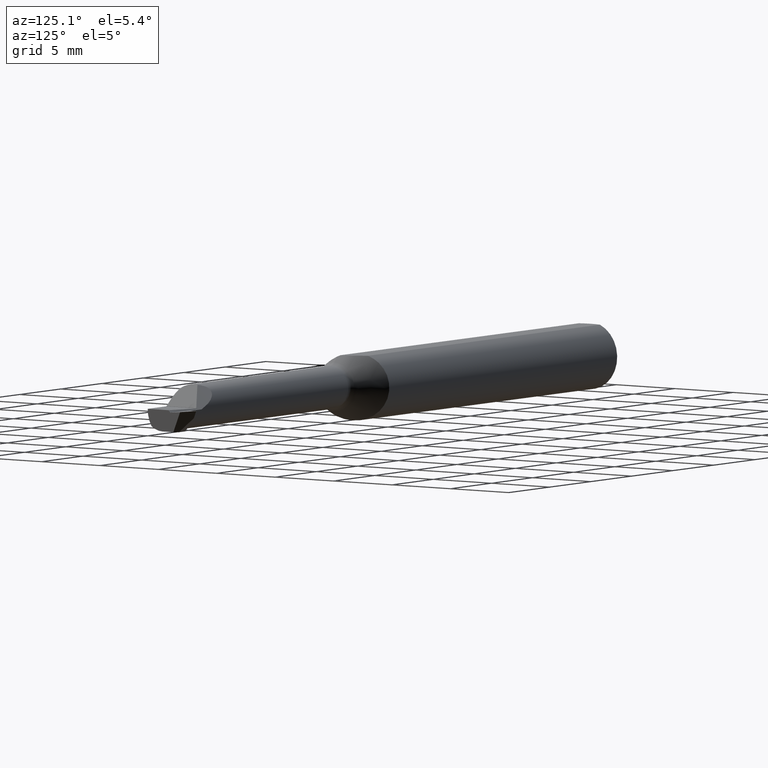
[diagram: clean part render]
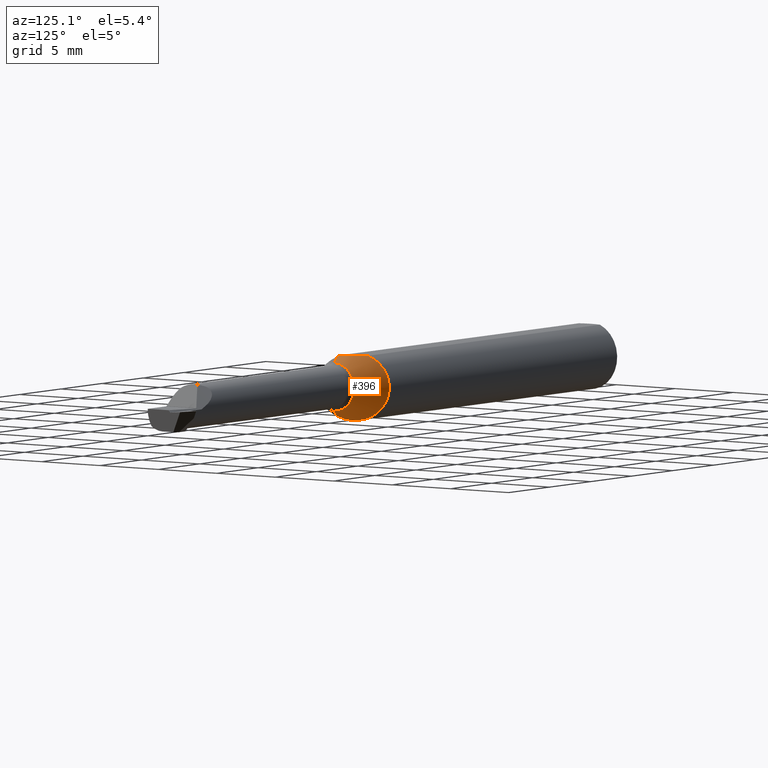
[diagram: same view with one face highlighted and labeled with its STEP entity id]
A machine part, auxiliary view. The second image highlights one B-rep face of the part: STEP entity #396.
In plain terms, the highlighted conical surface has half-angle 45 deg.
Its self-contained STEP definition (entity closure, byte-faithful):
#4 = CARTESIAN_POINT ( 'NONE',  ( 1.177677669529663573, -0.04360000000000000681, 0.000000000000000000 ) ) ;
#19 = CARTESIAN_POINT ( 'NONE',  ( 1.177677669529663573, -0.04359999999999999987, -0.06732233047033618634 ) ) ;
#27 = CARTESIAN_POINT ( 'NONE',  ( 1.141750224432351413, 0.01358083083026446515, 0.08660000000000001030 ) ) ;
#49 = DIRECTION ( 'NONE',  ( -0.7071067811865512365, 8.659560562354887252E-17, -0.7071067811865437980 ) ) ;
#50 = CARTESIAN_POINT ( 'NONE',  ( 1.159416727823433524, -0.03836044660242830806, -0.08558327217656613861 ) ) ;
#52 = VERTEX_POINT ( 'NONE', #931 ) ;
#57 = CARTESIAN_POINT ( 'NONE',  ( 1.115939244946420716, 0.06872653992798649636, -0.06386219844968339665 ) ) ;
#92 = EDGE_CURVE ( 'NONE', #424, #905, #449, .T. ) ;
#95 = DIRECTION ( 'NONE',  ( 0.000000000000000000, 0.000000000000000000, 1.000000000000000000 ) ) ;
#100 = FACE_OUTER_BOUND ( 'NONE', #112, .T. ) ;
#112 = EDGE_LOOP ( 'NONE', ( #1063, #482, #862, #723, #234, #785 ) ) ;
#125 = CARTESIAN_POINT ( 'NONE',  ( 1.110152022803403415, 0.08625128397210295172, -0.03693757504936098085 ) ) ;
#132 = CARTESIAN_POINT ( 'NONE',  ( 1.128890268427389598, 0.03227618288569647498, -0.08807239227670381199 ) ) ;
#139 = CARTESIAN_POINT ( 'NONE',  ( 1.113252824815950559, 0.07676139857450872683, -0.05393890405065051435 ) ) ;
#173 = CARTESIAN_POINT ( 'NONE',  ( 1.160796085082294704, -0.04098075454507676268, 0.08420391491770511105 ) ) ;
#215 = CARTESIAN_POINT ( 'NONE',  ( 1.112096236419457762, 0.08028148374112677177, -0.04856492361454633339 ) ) ;
#223 = CARTESIAN_POINT ( 'NONE',  ( 1.123563078640440471, 0.04680750307691888129, 0.08129727678532765178 ) ) ;
#229 = CARTESIAN_POINT ( 'NONE',  ( 1.135742326738735430, 0.01455546558514132609, -0.09266009913134311271 ) ) ;
#234 = ORIENTED_EDGE ( 'NONE', *, *, #805, .T. ) ;
#248 = B_SPLINE_CURVE_WITH_KNOTS ( 'NONE', 3,
 ( #514, #417, #27, #413, #510, #835 ),
 .UNSPECIFIED., .F., .F.,
 ( 4, 2, 4 ),
 ( 0.004221996091487665095, 0.005214190001193084317, 0.006206383910898503539 ),
 .UNSPECIFIED. ) ;
#267 = VERTEX_POINT ( 'NONE', #966 ) ;
#268 = CARTESIAN_POINT ( 'NONE',  ( 0.9849999999999979883, -0.04360000000000000681, 0.2599999999999998979 ) ) ;
#281 = CARTESIAN_POINT ( 'NONE',  ( 1.119879818681998263, 0.05722188270721500353, 0.07433603228884144709 ) ) ;
#292 = CARTESIAN_POINT ( 'NONE',  ( 1.115120089012976878, 0.07115311157076051329, 0.06114742213607383958 ) ) ;
#298 = CARTESIAN_POINT ( 'NONE',  ( 1.108476095694653774, 0.09147652334571192145, 0.02088478041190031803 ) ) ;
#307 = CARTESIAN_POINT ( 'NONE',  ( 1.162174883036605211, -0.04359999999999998599, -0.08282511696339464602 ) ) ;
#345 = EDGE_CURVE ( 'NONE', #905, #52, #248, .T. ) ;
#347 = VERTEX_POINT ( 'NONE', #19 ) ;
#350 = DIRECTION ( 'NONE',  ( 0.000000000000000000, 0.000000000000000000, 1.000000000000000000 ) ) ;
#362 = CARTESIAN_POINT ( 'NONE',  ( 1.133392098380112234, 0.02051992070829873963, -0.09152830773666507935 ) ) ;
#366 = CARTESIAN_POINT ( 'NONE',  ( 1.125549505070181366, 0.04130584341940998078, 0.08422556204225992160 ) ) ;
#372 = CARTESIAN_POINT ( 'NONE',  ( 1.108300457160753982, 0.09202461176102580409, -0.01829547249540548065 ) ) ;
#396 = ADVANCED_FACE ( 'NONE', ( #100 ), #710, .T. ) ;
#413 = CARTESIAN_POINT ( 'NONE',  ( 1.152683531163872122, -0.009962793248527826093, 0.08659999999999998255 ) ) ;
#417 = CARTESIAN_POINT ( 'NONE',  ( 1.134990260883381952, 0.02470984047336736295, 0.08659999999999998255 ) ) ;
#424 = VERTEX_POINT ( 'NONE', #860 ) ;
#431 = CARTESIAN_POINT ( 'NONE',  ( 0.9849999999999979883, -0.04360000000000000681, 0.000000000000000000 ) ) ;
#434 = CIRCLE ( 'NONE', #454, 0.06732233047033618634 ) ;
#449 = B_SPLINE_CURVE_WITH_KNOTS ( 'NONE', 3,
 ( #307, #50, #468, #861, #526, #532, #537, #229, #362, #132, #464, #451, #550, #791, #57, #139, #215, #125, #684, #372, #1013, #697, #1031, #298, #873, #619, #949, #877, #292, #691, #281, #223, #366, #544 ),
 .UNSPECIFIED., .F., .F.,
 ( 4, 2, 2, 2, 2, 2, 2, 2, 2, 2, 2, 2, 2, 2, 2, 2, 4 ),
 ( 0.001449473354703525833, 0.001946690950049001544, 0.002443908545394477255, 0.002941126140739953182, 0.003438343736085428676, 0.003935561331430905037, 0.004432778926776380531, 0.004929996522121856892, 0.005427214117467331518, 0.005924431712812807012, 0.006421649308158282506, 0.006918866903503758867, 0.007416084498849234360, 0.007913302094194709854, 0.008410519689540187083, 0.008907737284885662576, 0.009404954880231138070 ),
 .UNSPECIFIED. ) ;
#451 = CARTESIAN_POINT ( 'NONE',  ( 1.122725758621180958, 0.04914086561991824753, -0.07990555479593192123 ) ) ;
#454 = AXIS2_PLACEMENT_3D ( 'NONE', #4, #739, #350 ) ;
#455 = EDGE_CURVE ( 'NONE', #347, #424, #872, .T. ) ;
#464 = CARTESIAN_POINT ( 'NONE',  ( 1.126719064373899348, 0.03812469162702813302, -0.08571015254603471523 ) ) ;
#468 = CARTESIAN_POINT ( 'NONE',  ( 1.156623605259440080, -0.03278656602106045509, -0.08787223824268959593 ) ) ;
#482 = ORIENTED_EDGE ( 'NONE', *, *, #455, .T. ) ;
#510 = CARTESIAN_POINT ( 'NONE',  ( 1.156820612909630785, -0.02257368972052711462, 0.08660000000000001030 ) ) ;
#513 = CARTESIAN_POINT ( 'NONE',  ( 1.158023520836405362, -0.03551619348973038964, 0.08659999999999998255 ) ) ;
#514 = CARTESIAN_POINT ( 'NONE',  ( 1.127701525703423302, 0.03551619348973095169, 0.08659999999999998255 ) ) ;
#526 = CARTESIAN_POINT ( 'NONE',  ( 1.148495826740103531, -0.01554707447101384178, -0.09249312004605585169 ) ) ;
#532 = CARTESIAN_POINT ( 'NONE',  ( 1.143265014012250447, -0.003655424042671432359, -0.09371940383682351994 ) ) ;
#537 = CARTESIAN_POINT ( 'NONE',  ( 1.140674899065930781, 0.002473900429620011238, -0.09376372094842914950 ) ) ;
#544 = CARTESIAN_POINT ( 'NONE',  ( 1.127701525703423302, 0.03551619348973095169, 0.08659999999999998255 ) ) ;
#550 = CARTESIAN_POINT ( 'NONE',  ( 1.120885649790713590, 0.05435289654770203427, -0.07646389683077740862 ) ) ;
#576 = VECTOR ( 'NONE', #49, 39.37007874015748143 ) ;
#584 = CARTESIAN_POINT ( 'NONE',  ( 1.159412477529317975, -0.03828698621588689371, 0.08546364883854391803 ) ) ;
#587 = CARTESIAN_POINT ( 'NONE',  ( 1.162174883036605211, -0.04359999999999998599, 0.08282511696339463214 ) ) ;
#619 = CARTESIAN_POINT ( 'NONE',  ( 1.110511327969830875, 0.08514595224235761706, 0.03941142604992352305 ) ) ;
#638 = B_SPLINE_CURVE_WITH_KNOTS ( 'NONE', 3,
 ( #513, #584, #173, #587 ),
 .UNSPECIFIED., .F., .F.,
 ( 4, 4 ),
 ( 5.729164479866365766E-07, 0.0002485545944389318403 ),
 .UNSPECIFIED. ) ;
#659 = DIRECTION ( 'NONE',  ( -1.000000000000000000, -0.000000000000000000, -0.000000000000000000 ) ) ;
#671 = AXIS2_PLACEMENT_3D ( 'NONE', #431, #659, #95 ) ;
#684 = CARTESIAN_POINT ( 'NONE',  ( 1.109393831565363975, 0.08861025287414570073, -0.03084601382962845126 ) ) ;
#690 = VECTOR ( 'NONE', #840, 39.37007874015748143 ) ;
#691 = CARTESIAN_POINT ( 'NONE',  ( 1.118166364789387579, 0.06218498935449452703, 0.07024812893643296585 ) ) ;
#697 = CARTESIAN_POINT ( 'NONE',  ( 1.107730217382799198, 0.09381949476875167671, 0.001379171797657512740 ) ) ;
#710 = CONICAL_SURFACE ( 'NONE', #671, 0.2599999999999998979, 0.7853981633974430610 ) ;
#723 = ORIENTED_EDGE ( 'NONE', *, *, #345, .T. ) ;
#735 = EDGE_CURVE ( 'NONE', #267, #747, #753, .T. ) ;
#739 = DIRECTION ( 'NONE',  ( -1.000000000000000000, -0.000000000000000000, -0.000000000000000000 ) ) ;
#747 = VERTEX_POINT ( 'NONE', #910 ) ;
#753 = LINE ( 'NONE', #268, #690 ) ;
#764 = EDGE_CURVE ( 'NONE', #267, #347, #434, .T. ) ;
#785 = ORIENTED_EDGE ( 'NONE', *, *, #735, .F. ) ;
#791 = CARTESIAN_POINT ( 'NONE',  ( 1.117491920919020609, 0.06414576699549906502, -0.06845644935455030833 ) ) ;
#805 = EDGE_CURVE ( 'NONE', #52, #747, #638, .T. ) ;
#835 = CARTESIAN_POINT ( 'NONE',  ( 1.158023520836405362, -0.03551619348973038964, 0.08659999999999998255 ) ) ;
#840 = DIRECTION ( 'NONE',  ( -0.7071067811865512365, 0.000000000000000000, 0.7071067811865437980 ) ) ;
#860 = CARTESIAN_POINT ( 'NONE',  ( 1.162174883036605211, -0.04359999999999998599, -0.08282511696339464602 ) ) ;
#861 = CARTESIAN_POINT ( 'NONE',  ( 1.151162578112212342, -0.02137516006684738942, -0.09132136495557881262 ) ) ;
#862 = ORIENTED_EDGE ( 'NONE', *, *, #92, .T. ) ;
#872 = LINE ( 'NONE', #934, #576 ) ;
#873 = CARTESIAN_POINT ( 'NONE',  ( 1.109020195642277828, 0.08977100142499537527, 0.02728114714779977801 ) ) ;
#877 = CARTESIAN_POINT ( 'NONE',  ( 1.113785744349288231, 0.07515970287789003335, 0.05615941996324870511 ) ) ;
#905 = VERTEX_POINT ( 'NONE', #1006 ) ;
#910 = CARTESIAN_POINT ( 'NONE',  ( 1.162174883036605211, -0.04359999999999998599, 0.08282511696339463214 ) ) ;
#931 = CARTESIAN_POINT ( 'NONE',  ( 1.158023520836405362, -0.03551619348973038964, 0.08659999999999998255 ) ) ;
#934 = CARTESIAN_POINT ( 'NONE',  ( 0.9849999999999979883, -0.04359999999999997211, -0.2599999999999998979 ) ) ;
#949 = CARTESIAN_POINT ( 'NONE',  ( 1.111475077763426800, 0.08217488604661304930, 0.04527857650729996686 ) ) ;
#966 = CARTESIAN_POINT ( 'NONE',  ( 1.177677669529663573, -0.04360000000000000681, 0.06732233047033618634 ) ) ;
#1006 = CARTESIAN_POINT ( 'NONE',  ( 1.127701525703423302, 0.03551619348973095169, 0.08659999999999998255 ) ) ;
#1013 = CARTESIAN_POINT ( 'NONE',  ( 1.107960659897338829, 0.09309458096140459105, -0.01172171954671190862 ) ) ;
#1031 = CARTESIAN_POINT ( 'NONE',  ( 1.107832322352278576, 0.09349711215871499281, 0.007900531263943164767 ) ) ;
#1063 = ORIENTED_EDGE ( 'NONE', *, *, #764, .T. ) ;